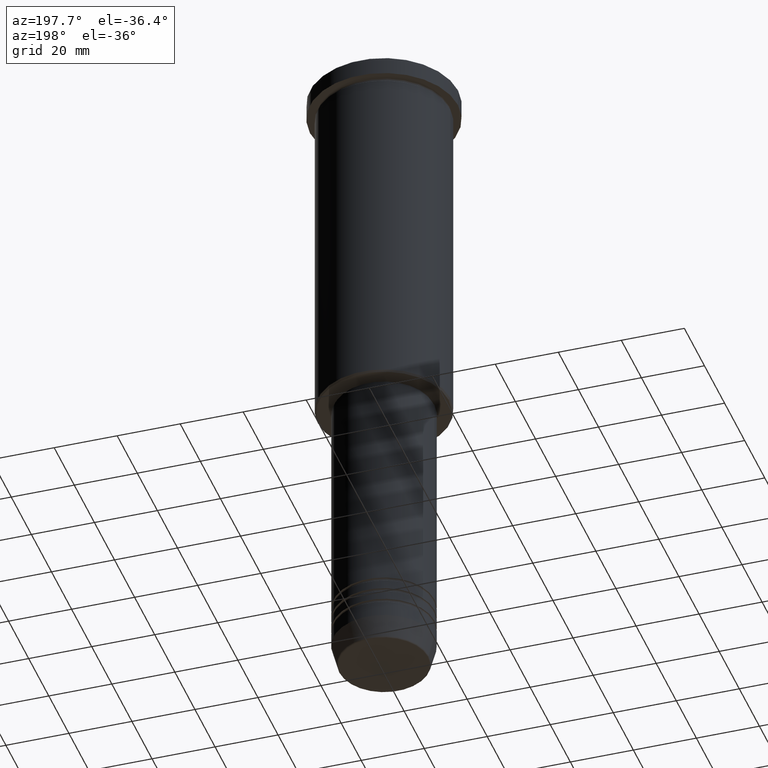
[diagram: clean part render]
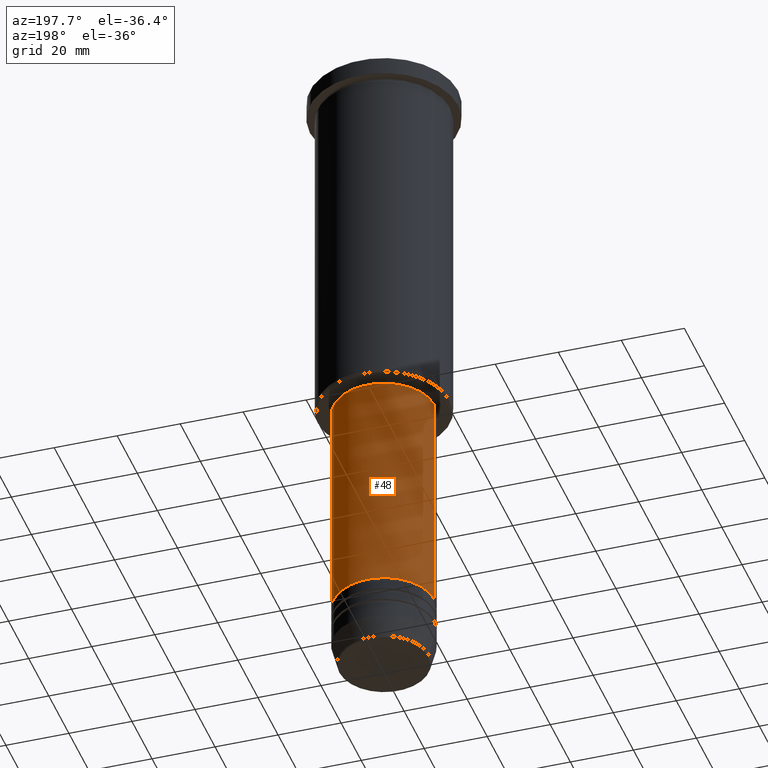
[diagram: same view with one face highlighted and labeled with its STEP entity id]
A machine part, auxiliary view. The second image highlights one B-rep face of the part: STEP entity #48.
In plain terms, the highlighted cylindrical surface (partial cylindrical patch) has radius 16 mm, axis along (-0, -0, 1).
Its self-contained STEP definition (entity closure, byte-faithful):
#12 = CIRCLE ( 'NONE', #1064, 16.00000000000000355 ) ;
#38 = CARTESIAN_POINT ( 'NONE',  ( 16.00000000000000000, 0.000000000000000000, -189.9999999999999147 ) ) ;
#43 = DIRECTION ( 'NONE',  ( -0.000000000000000000, -0.000000000000000000, 1.000000000000000000 ) ) ;
#48 = ADVANCED_FACE ( 'NONE', ( #295 ), #316, .T. ) ;
#54 = CIRCLE ( 'NONE', #247, 16.00000000000000000 ) ;
#57 = VERTEX_POINT ( 'NONE', #527 ) ;
#82 = VERTEX_POINT ( 'NONE', #38 ) ;
#156 = EDGE_CURVE ( 'NONE', #82, #682, #432, .T. ) ;
#157 = DIRECTION ( 'NONE',  ( 1.000000000000000000, 0.000000000000000000, 0.000000000000000000 ) ) ;
#166 = ORIENTED_EDGE ( 'NONE', *, *, #641, .F. ) ;
#240 = ORIENTED_EDGE ( 'NONE', *, *, #156, .F. ) ;
#241 = DIRECTION ( 'NONE',  ( -0.000000000000000000, -0.000000000000000000, 1.000000000000000000 ) ) ;
#247 = AXIS2_PLACEMENT_3D ( 'NONE', #334, #241, #514 ) ;
#295 = FACE_OUTER_BOUND ( 'NONE', #522, .T. ) ;
#301 = AXIS2_PLACEMENT_3D ( 'NONE', #872, #43, #963 ) ;
#316 = CYLINDRICAL_SURFACE ( 'NONE', #301, 16.00000000000000000 ) ;
#334 = CARTESIAN_POINT ( 'NONE',  ( 0.000000000000000000, 0.000000000000000000, -189.9999999999999147 ) ) ;
#363 = VECTOR ( 'NONE', #1059, 1000.000000000000000 ) ;
#382 = LINE ( 'NONE', #925, #1048 ) ;
#424 = CARTESIAN_POINT ( 'NONE',  ( 16.00000000000000000, 0.000000000000000000, 0.000000000000000000 ) ) ;
#432 = LINE ( 'NONE', #424, #363 ) ;
#497 = ORIENTED_EDGE ( 'NONE', *, *, #800, .T. ) ;
#514 = DIRECTION ( 'NONE',  ( 1.000000000000000000, 0.000000000000000000, 0.000000000000000000 ) ) ;
#522 = EDGE_LOOP ( 'NONE', ( #886, #497, #166, #240 ) ) ;
#527 = CARTESIAN_POINT ( 'NONE',  ( -16.00000000000000000, 1.959434878635765131E-15, -189.9999999999999147 ) ) ;
#553 = EDGE_CURVE ( 'NONE', #82, #57, #54, .T. ) ;
#641 = EDGE_CURVE ( 'NONE', #682, #1005, #12, .T. ) ;
#649 = DIRECTION ( 'NONE',  ( -0.000000000000000000, -0.000000000000000000, 1.000000000000000000 ) ) ;
#682 = VERTEX_POINT ( 'NONE', #988 ) ;
#792 = CARTESIAN_POINT ( 'NONE',  ( -16.00000000000000355, 1.959434878635765526E-15, -117.0000000000000426 ) ) ;
#800 = EDGE_CURVE ( 'NONE', #57, #1005, #382, .T. ) ;
#872 = CARTESIAN_POINT ( 'NONE',  ( 0.000000000000000000, 0.000000000000000000, 0.000000000000000000 ) ) ;
#886 = ORIENTED_EDGE ( 'NONE', *, *, #553, .T. ) ;
#905 = CARTESIAN_POINT ( 'NONE',  ( 0.000000000000000000, 0.000000000000000000, -117.0000000000000426 ) ) ;
#925 = CARTESIAN_POINT ( 'NONE',  ( -16.00000000000000000, 1.959434878635765131E-15, 0.000000000000000000 ) ) ;
#963 = DIRECTION ( 'NONE',  ( 1.000000000000000000, 0.000000000000000000, 0.000000000000000000 ) ) ;
#988 = CARTESIAN_POINT ( 'NONE',  ( 16.00000000000000355, 0.000000000000000000, -117.0000000000000426 ) ) ;
#1005 = VERTEX_POINT ( 'NONE', #792 ) ;
#1048 = VECTOR ( 'NONE', #649, 1000.000000000000000 ) ;
#1059 = DIRECTION ( 'NONE',  ( -0.000000000000000000, -0.000000000000000000, 1.000000000000000000 ) ) ;
#1064 = AXIS2_PLACEMENT_3D ( 'NONE', #905, #1088, #157 ) ;
#1088 = DIRECTION ( 'NONE',  ( -0.000000000000000000, -0.000000000000000000, 1.000000000000000000 ) ) ;